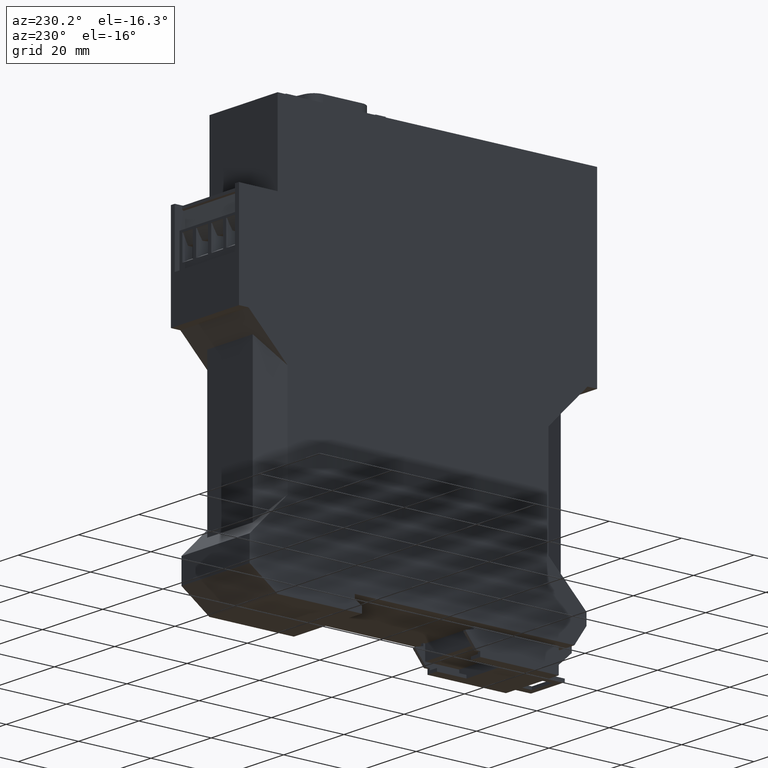
[diagram: clean part render]
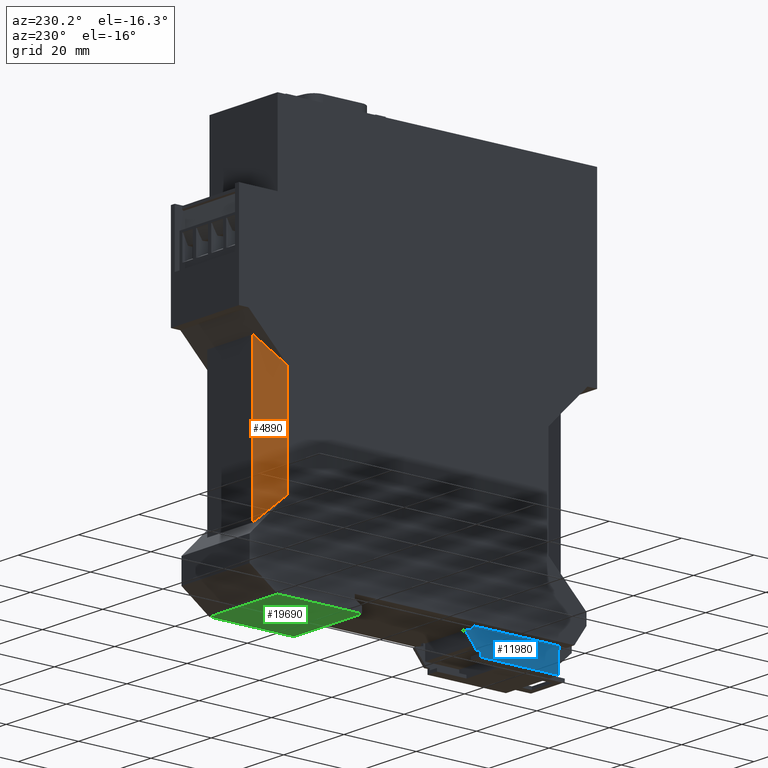
[diagram: same view with three faces highlighted in distinct colors, each labeled with its STEP entity id]
A machine part, auxiliary view with three faces highlighted in distinct colors.
Their STEP definitions:

[orange] entity #4890 — the highlighted planar face has unit normal (0.866, -0.5, 0).
#680=CARTESIAN_POINT('',(18.55000000009,18.4999999999987,0.));
#690=VERTEX_POINT('',#680);
#720=CARTESIAN_POINT('',(18.5500000000901,24.,0.));
#730=DIRECTION('',(4.E-15,1.,0.));
#740=VECTOR('',#730,1.);
#750=LINE('',#720,#740);
#760=CARTESIAN_POINT('',(18.5500000000902,47.1000000000011,0.));
#770=VERTEX_POINT('',#760);
#780=EDGE_CURVE('',#690,#770,#750,.T.);
#4590=CARTESIAN_POINT('',(20.840414750099,17.5174029733583,
1.32237157247356));
#4600=DIRECTION('',(-0.499999999999999,2.E-15,0.866025403784439));
#4610=DIRECTION('',(0.866025403784439,0.,0.499999999999999));
#4620=AXIS2_PLACEMENT_3D('',#4590,#4600,#4610);
#4630=PLANE('',#4620);
#4640=CARTESIAN_POINT('',(24.,13.0500000000897,3.14655896703148));
#4650=DIRECTION('',(-0.654653670708029,0.654653670707908,
-0.377964473009258));
#4660=VECTOR('',#4650,1.);
#4670=LINE('',#4640,#4660);
#4680=CARTESIAN_POINT('',(25.0500000000874,12.0000000000026,
3.75277674973103));
#4690=VERTEX_POINT('',#4680);
#4700=EDGE_CURVE('',#4690,#690,#4670,.T.);
#4710=ORIENTED_EDGE('',*,*,#4700,.T.);
#4720=CARTESIAN_POINT('',(25.0500000000873,24.,3.75277674973095));
#4730=DIRECTION('',(-6.60000000000277E-15,1.,-6.11991285341162E-15));
#4740=VECTOR('',#4730,1.);
#4750=LINE('',#4720,#4740);
#4760=CARTESIAN_POINT('',(25.0500000000871,53.599999999998,
3.75277674973077));
#4770=VERTEX_POINT('',#4760);
#4780=EDGE_CURVE('',#4690,#4770,#4750,.T.);
#4790=ORIENTED_EDGE('',*,*,#4780,.F.);
#4800=CARTESIAN_POINT('',(24.,52.5499999999109,3.14655896703138));
#4810=DIRECTION('',(0.65465367070798,0.654653670707975,0.377964473009226
));
#4820=VECTOR('',#4810,1.);
#4830=LINE('',#4800,#4820);
#4840=EDGE_CURVE('',#770,#4770,#4830,.T.);
#4850=ORIENTED_EDGE('',*,*,#4840,.T.);
#4860=ORIENTED_EDGE('',*,*,#780,.T.);
#4870=EDGE_LOOP('',(#4860,#4850,#4790,#4710));
#4880=FACE_OUTER_BOUND('',#4870,.T.);
#4890=ADVANCED_FACE('',(#4880),#4630,.F.);

[blue] entity #11980 — the highlighted planar face has unit normal (-1, 0, 0).
#5820=CARTESIAN_POINT('',(-32.8000000000018,-1.49999999999912,
2.54999999999998));
#5830=VERTEX_POINT('',#5820);
#5880=CARTESIAN_POINT('',(-18.5961179743032,16.0181211650292,
2.54999999999998));
#5890=DIRECTION('',(-0.62980195842122,-0.776755748719503,0.));
#5900=VECTOR('',#5890,1.);
#5910=LINE('',#5880,#5900);
#5920=CARTESIAN_POINT('',(-35.8000000000019,-5.19999999999913,
2.54999999999998));
#5930=VERTEX_POINT('',#5920);
#5940=EDGE_CURVE('',#5830,#5930,#5910,.T.);
#8140=CARTESIAN_POINT('',(-32.8000000000018,-1.19999999999913,
2.54999999999998));
#8150=VERTEX_POINT('',#8140);
#8200=CARTESIAN_POINT('',(-32.8000000000018,15.1316941286013,
2.54999999999998));
#8210=DIRECTION('',(0.,-1.,0.));
#8220=VECTOR('',#8210,1.);
#8230=LINE('',#8200,#8220);
#8240=EDGE_CURVE('',#8150,#5830,#8230,.T.);
#9370=CARTESIAN_POINT('',(-58.5000000000017,4.72510919280467E-13,
2.54999999999998));
#9380=VERTEX_POINT('',#9370);
#9620=CARTESIAN_POINT('',(-58.5000000000017,-6.49999999999915,
2.54999999999998));
#9630=VERTEX_POINT('',#9620);
#9660=CARTESIAN_POINT('',(-58.5000000000018,15.1316941286013,
2.54999999999998));
#9670=DIRECTION('',(0.,1.,0.));
#9680=VECTOR('',#9670,1.);
#9690=LINE('',#9660,#9680);
#9700=EDGE_CURVE('',#9630,#9380,#9690,.T.);
#10190=CARTESIAN_POINT('',(-17.5028579627089,-5.19999999999913,
2.54999999999998));
#10200=DIRECTION('',(-1.,0.,0.));
#10210=VECTOR('',#10200,1.);
#10220=LINE('',#10190,#10210);
#10230=CARTESIAN_POINT('',(-36.8000000000018,-5.19999999999913,
2.54999999999998));
#10240=VERTEX_POINT('',#10230);
#10250=EDGE_CURVE('',#5930,#10240,#10220,.T.);
#11310=CARTESIAN_POINT('',(-35.0000000000018,1.35003119794419E-13,
2.54999999999998));
#11320=VERTEX_POINT('',#11310);
#11350=CARTESIAN_POINT('',(-35.0000000000018,15.1316941286013,
2.54999999999998));
#11360=DIRECTION('',(0.,-1.,0.));
#11370=VECTOR('',#11360,1.);
#11380=LINE('',#11350,#11370);
#11390=CARTESIAN_POINT('',(-35.0000000000018,-0.699999999999125,
2.54999999999998));
#11400=VERTEX_POINT('',#11390);
#11410=EDGE_CURVE('',#11320,#11400,#11380,.T.);
#11600=CARTESIAN_POINT('',(-17.5028579627089,15.1316941286013,
2.54999999999998));
#11610=DIRECTION('',(0.,0.,-1.));
#11620=DIRECTION('',(-1.,0.,0.));
#11630=AXIS2_PLACEMENT_3D('',#11600,#11610,#11620);
#11640=PLANE('',#11630);
#11650=ORIENTED_EDGE('',*,*,#10250,.T.);
#11660=ORIENTED_EDGE('',*,*,#5940,.T.);
#11670=ORIENTED_EDGE('',*,*,#8240,.T.);
#11680=CARTESIAN_POINT('',(-21.7836338076567,-3.70371958916854,
2.54999999999998));
#11690=DIRECTION('',(0.975132855791458,-0.221621103588974,-0.));
#11700=VECTOR('',#11690,1.);
#11710=LINE('',#11680,#11700);
#11720=EDGE_CURVE('',#11400,#8150,#11710,.T.);
#11730=ORIENTED_EDGE('',*,*,#11720,.T.);
#11740=ORIENTED_EDGE('',*,*,#11410,.T.);
#11750=CARTESIAN_POINT('',(24.,-7.14095449438901E-13,2.54999999999998));
#11760=DIRECTION('',(-1.,1.44E-14,0.));
#11770=VECTOR('',#11760,1.);
#11780=LINE('',#11750,#11770);
#11790=EDGE_CURVE('',#11320,#9380,#11780,.T.);
#11800=ORIENTED_EDGE('',*,*,#11790,.F.);
#11810=ORIENTED_EDGE('',*,*,#9700,.T.);
#11820=CARTESIAN_POINT('',(-17.5000000000017,-6.50000000000032,
2.54999999999998));
#11830=DIRECTION('',(1.,-2.8421709430404E-14,-0.));
#11840=VECTOR('',#11830,1.);
#11850=LINE('',#11820,#11840);
#11860=CARTESIAN_POINT('',(-36.8000000000018,-6.49999999999977,
2.54999999999998));
#11870=VERTEX_POINT('',#11860);
#11880=EDGE_CURVE('',#9630,#11870,#11850,.T.);
#11890=ORIENTED_EDGE('',*,*,#11880,.F.);
#11900=CARTESIAN_POINT('',(-36.8000000000018,-7.89999999999914,
2.54999999999998));
#11910=DIRECTION('',(0.,1.,0.));
#11920=VECTOR('',#11910,1.);
#11930=LINE('',#11900,#11920);
#11940=EDGE_CURVE('',#11870,#10240,#11930,.T.);
#11950=ORIENTED_EDGE('',*,*,#11940,.F.);
#11960=EDGE_LOOP('',(#11950,#11890,#11810,#11800,#11740,#11730,#11670,
#11660,#11650));
#11970=FACE_OUTER_BOUND('',#11960,.T.);
#11980=ADVANCED_FACE('F59',(#11970),#11640,.T.);

[green] entity #19690 — the highlighted planar face has unit normal (0, -0, 1).
#360=CARTESIAN_POINT('',(-2.00000000000178,-4.00000000000004,0.));
#370=VERTEX_POINT('',#360);
#400=CARTESIAN_POINT('',(24.,-4.00000000000004,0.));
#410=DIRECTION('',(1.,4.80965890943096E-26,0.));
#420=VECTOR('',#410,1.);
#430=LINE('',#400,#420);
#440=CARTESIAN_POINT('',(21.3380007636733,-4.00000000000004,0.));
#450=VERTEX_POINT('',#440);
#460=EDGE_CURVE('',#370,#450,#430,.T.);
#3310=CARTESIAN_POINT('',(21.338000763663,-4.00000000000013,22.6));
#3320=VERTEX_POINT('',#3310);
#3350=CARTESIAN_POINT('',(24.,-4.00000000000009,22.6));
#3360=DIRECTION('',(1.,4.80965890943096E-26,0.));
#3370=VECTOR('',#3360,1.);
#3380=LINE('',#3350,#3370);
#3390=CARTESIAN_POINT('',(-2.00000000000178,-4.00000000000013,22.6));
#3400=VERTEX_POINT('',#3390);
#3410=EDGE_CURVE('',#3400,#3320,#3380,.T.);
#19350=CARTESIAN_POINT('',(21.3380007636733,-4.00000000000004,0.));
#19360=DIRECTION('',(-9.11449562199973E-13,-3.85644490616134E-15,1.));
#19370=VECTOR('',#19360,1.);
#19380=LINE('',#19350,#19370);
#19390=EDGE_CURVE('',#450,#3320,#19380,.T.);
#19530=CARTESIAN_POINT('',(-1.50000000020122,-4.00000000000009,
11.3000000016399));
#19540=DIRECTION('',(-4.80965890943096E-26,1.,3.85644490616134E-15));
#19550=DIRECTION('',(-1.,4.80965890943096E-26,-2.49434856530515E-11));
#19560=AXIS2_PLACEMENT_3D('',#19530,#19540,#19550);
#19570=PLANE('',#19560);
#19580=ORIENTED_EDGE('',*,*,#460,.T.);
#19590=CARTESIAN_POINT('',(-2.00000000000178,-4.00000000000004,0.));
#19600=DIRECTION('',(-0.,-3.85644490616134E-15,1.));
#19610=VECTOR('',#19600,1.);
#19620=LINE('',#19590,#19610);
#19630=EDGE_CURVE('',#370,#3400,#19620,.T.);
#19640=ORIENTED_EDGE('',*,*,#19630,.F.);
#19650=ORIENTED_EDGE('',*,*,#3410,.F.);
#19660=ORIENTED_EDGE('',*,*,#19390,.T.);
#19670=EDGE_LOOP('',(#19660,#19650,#19640,#19580));
#19680=FACE_OUTER_BOUND('',#19670,.T.);
#19690=ADVANCED_FACE('',(#19680),#19570,.F.);